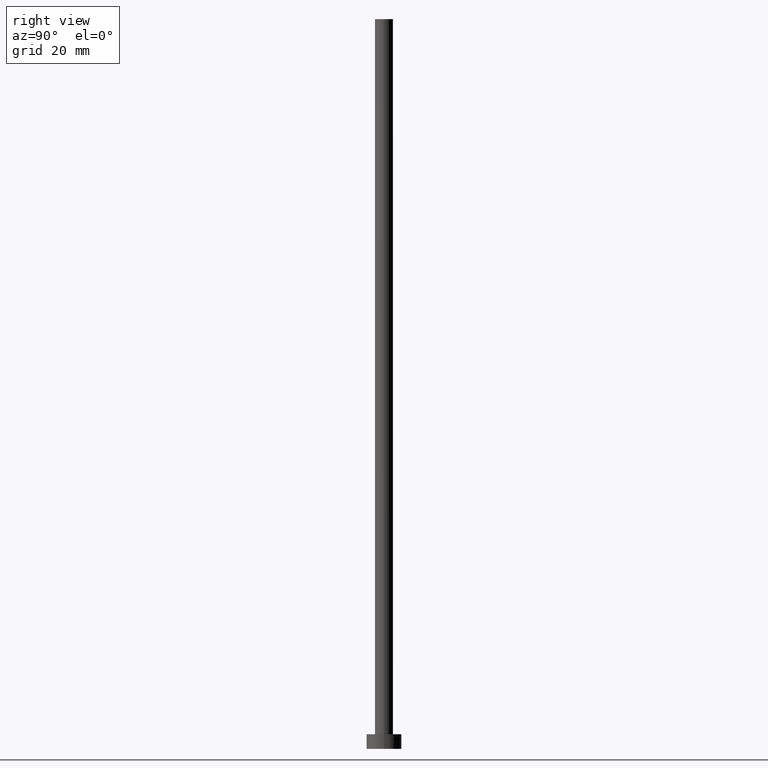
[diagram: clean part render]
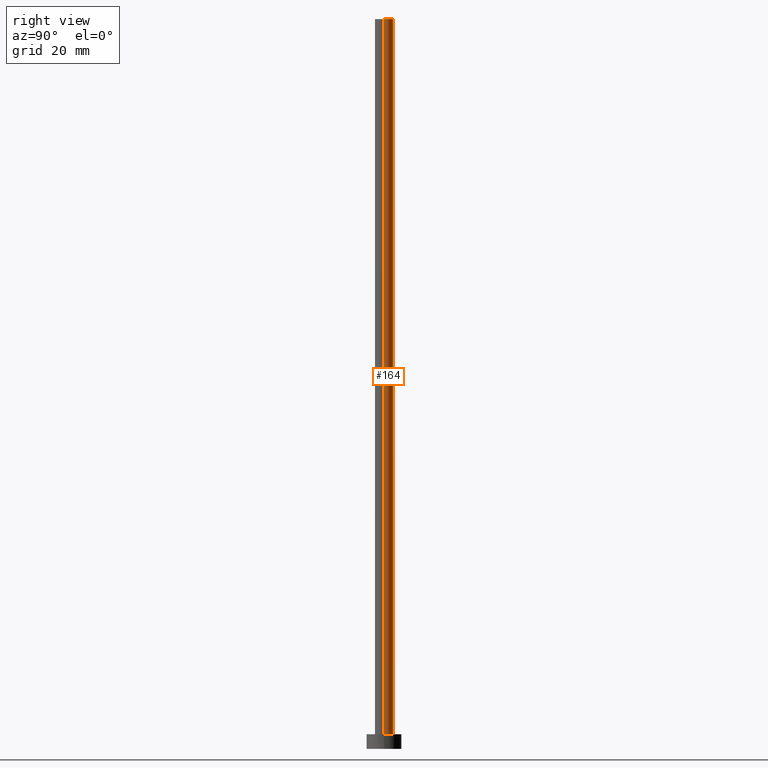
[diagram: same view with one face highlighted and labeled with its STEP entity id]
A machine part, right view. The second image highlights one B-rep face of the part: STEP entity #164.
In plain terms, the highlighted cylindrical surface (edge-blend (fillet) strip) has radius 3.1 mm, axis along (-0, -0, -1).
Its self-contained STEP definition (entity closure, byte-faithful):
#18 = DIRECTION ( 'NONE',  ( 1.000000000000000000, 0.000000000000000000, 0.000000000000000000 ) ) ;
#24 = EDGE_CURVE ( 'NONE', #50, #91, #72, .T. ) ;
#28 = ORIENTED_EDGE ( 'NONE', *, *, #243, .F. ) ;
#33 = CARTESIAN_POINT ( 'NONE',  ( 0.000000000000000000, 0.000000000000000000, 5.000000000000000000 ) ) ;
#34 = EDGE_CURVE ( 'NONE', #239, #91, #252, .T. ) ;
#36 = DIRECTION ( 'NONE',  ( -1.000000000000000000, 0.000000000000000000, 0.000000000000000000 ) ) ;
#44 = AXIS2_PLACEMENT_3D ( 'NONE', #33, #111, #59 ) ;
#46 = EDGE_LOOP ( 'NONE', ( #28, #53, #133, #167 ) ) ;
#50 = VERTEX_POINT ( 'NONE', #156 ) ;
#53 = ORIENTED_EDGE ( 'NONE', *, *, #120, .T. ) ;
#59 = DIRECTION ( 'NONE',  ( 1.000000000000000000, 0.000000000000000000, 0.000000000000000000 ) ) ;
#71 = CARTESIAN_POINT ( 'NONE',  ( 3.100000000000000089, 3.796405077356794918E-16, 250.0000000000000000 ) ) ;
#72 = LINE ( 'NONE', #151, #206 ) ;
#91 = VERTEX_POINT ( 'NONE', #247 ) ;
#98 = CARTESIAN_POINT ( 'NONE',  ( 3.100000000000000089, 3.796405077356794918E-16, 5.000000000000000000 ) ) ;
#111 = DIRECTION ( 'NONE',  ( 0.000000000000000000, 0.000000000000000000, 1.000000000000000000 ) ) ;
#112 = FACE_OUTER_BOUND ( 'NONE', #46, .T. ) ;
#120 = EDGE_CURVE ( 'NONE', #199, #239, #168, .T. ) ;
#127 = CARTESIAN_POINT ( 'NONE',  ( 0.000000000000000000, 0.000000000000000000, 250.0000000000000000 ) ) ;
#133 = ORIENTED_EDGE ( 'NONE', *, *, #34, .T. ) ;
#137 = AXIS2_PLACEMENT_3D ( 'NONE', #186, #221, #36 ) ;
#142 = VECTOR ( 'NONE', #249, 1000.000000000000000 ) ;
#150 = CYLINDRICAL_SURFACE ( 'NONE', #137, 3.100000000000000089 ) ;
#151 = CARTESIAN_POINT ( 'NONE',  ( -3.100000000000000089, 0.000000000000000000, 250.0000000000000000 ) ) ;
#156 = CARTESIAN_POINT ( 'NONE',  ( -3.100000000000000089, 0.000000000000000000, 250.0000000000000000 ) ) ;
#164 = ADVANCED_FACE ( 'NONE', ( #112 ), #150, .T. ) ;
#167 = ORIENTED_EDGE ( 'NONE', *, *, #24, .F. ) ;
#168 = LINE ( 'NONE', #71, #142 ) ;
#186 = CARTESIAN_POINT ( 'NONE',  ( 0.000000000000000000, 0.000000000000000000, 250.0000000000000000 ) ) ;
#199 = VERTEX_POINT ( 'NONE', #246 ) ;
#205 = DIRECTION ( 'NONE',  ( -0.000000000000000000, -0.000000000000000000, -1.000000000000000000 ) ) ;
#206 = VECTOR ( 'NONE', #205, 1000.000000000000000 ) ;
#221 = DIRECTION ( 'NONE',  ( -0.000000000000000000, -0.000000000000000000, -1.000000000000000000 ) ) ;
#226 = CIRCLE ( 'NONE', #250, 3.100000000000000089 ) ;
#229 = DIRECTION ( 'NONE',  ( 0.000000000000000000, 0.000000000000000000, 1.000000000000000000 ) ) ;
#239 = VERTEX_POINT ( 'NONE', #98 ) ;
#243 = EDGE_CURVE ( 'NONE', #199, #50, #226, .T. ) ;
#246 = CARTESIAN_POINT ( 'NONE',  ( 3.100000000000000089, 3.796405077356794918E-16, 250.0000000000000000 ) ) ;
#247 = CARTESIAN_POINT ( 'NONE',  ( -3.100000000000000089, 0.000000000000000000, 5.000000000000000000 ) ) ;
#249 = DIRECTION ( 'NONE',  ( -0.000000000000000000, -0.000000000000000000, -1.000000000000000000 ) ) ;
#250 = AXIS2_PLACEMENT_3D ( 'NONE', #127, #229, #18 ) ;
#252 = CIRCLE ( 'NONE', #44, 3.100000000000000089 ) ;